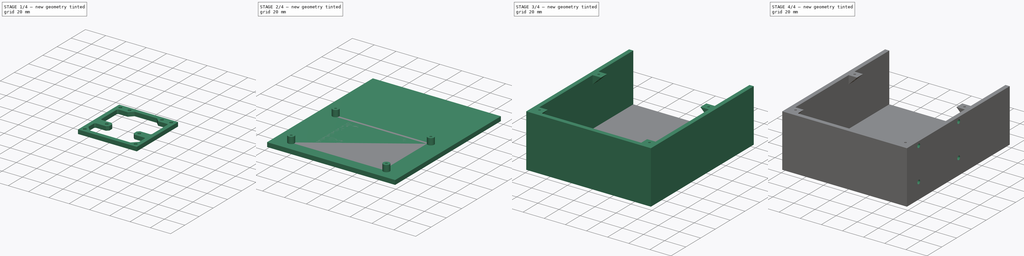
[diagram: build sequence overview — one tinted view per stage of 4, left to right]
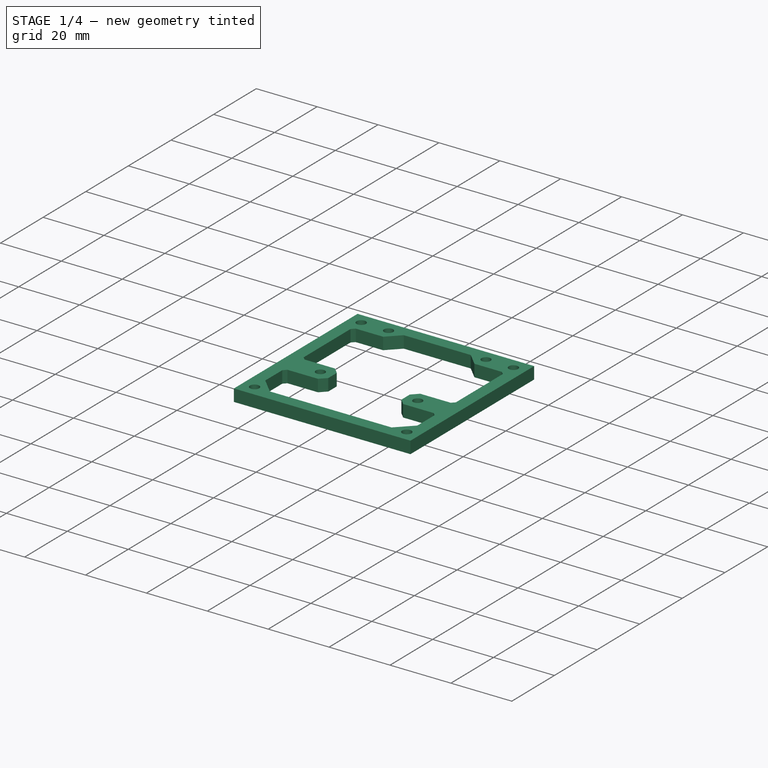
[diagram: stage 1 of 4 — iso view after this stage's code; geometry added in this stage tinted green]
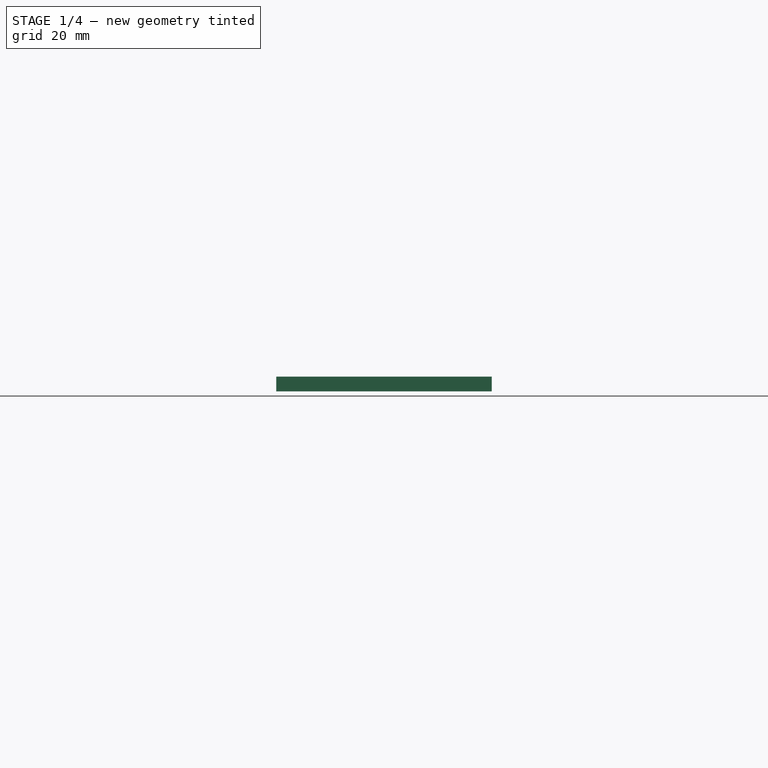
[diagram: stage 1 of 4 — front view after this stage's code; geometry added in this stage tinted green]
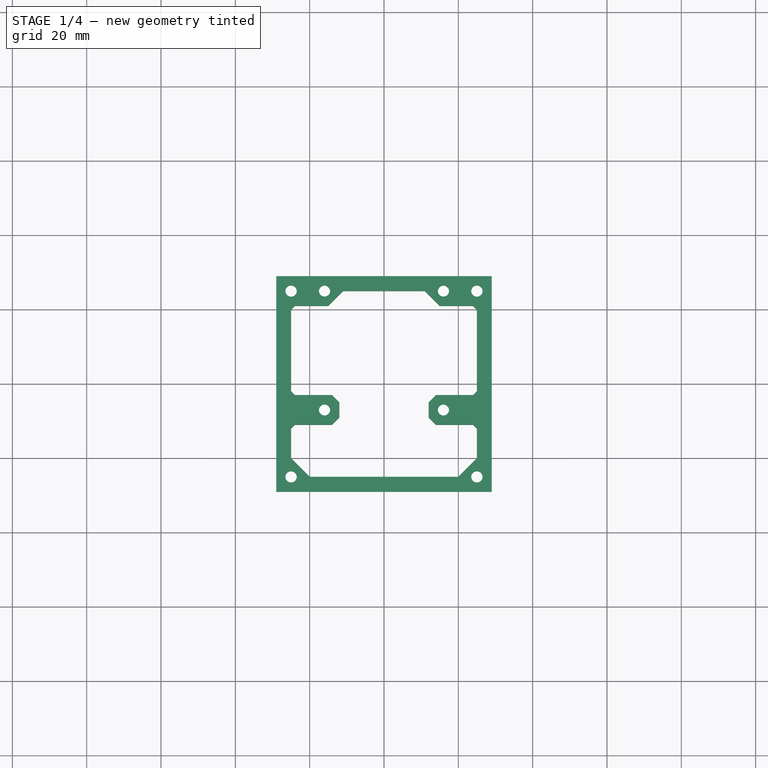
[diagram: stage 1 of 4 — top view after this stage's code; geometry added in this stage tinted green]
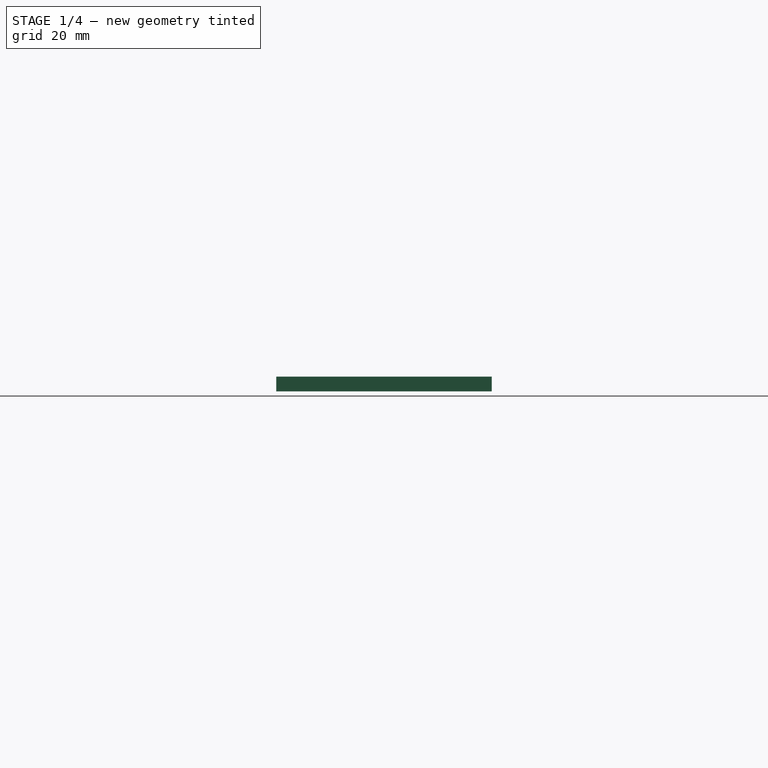
[diagram: stage 1 of 4 — right view after this stage's code; geometry added in this stage tinted green]
FCSTD DOCUMENT  (FreeCAD 0.18.4R)
Label: nvidiajetsonnano
License: All rights reserved
LicenseURL: http://en.wikipedia.org/wiki/All_rights_reserved
objects: Sketcher::SketchObject×10, PartDesign::Pad×6, PartDesign::Body×3, PartDesign::Pocket×3, PartDesign::Chamfer×2, Part::FeaturePython×1, PartDesign::LinearPattern×1, App::DocumentObjectGroup×1
note: 35 computed .brp shape members not serialized (recipe doc carries the construction recipe); baked Part::Feature solids carry a one-line shape summary decoded from their .brp

FEATURE [PartDesign::Body] Body001
  Group = -> [Sketch002,Sketch003,Pad001,Pad002,Sketch004,Pocket,Sketch005,Pad003,Sketch006,Pad004,LinearPattern,Sketch007,Pocket001,Sketch008,Pocket002]
  Origin = -> Origin001
  Tip = -> Pocket002
FEATURE [Sketcher::SketchObject] Sketch009
  MapMode = 5
  Support = -> [XY_Plane002]
  sketch-geometry (38):
    g0: LineSegment [constr] StartX=-16 StartY=25 StartZ=0 EndX=16 EndY=25 EndZ=0
    g1: LineSegment [constr] StartX=16 StartY=25 StartZ=0 EndX=16 EndY=-7 EndZ=0
    g2: LineSegment [constr] StartX=16 StartY=-7 StartZ=0 EndX=-16 EndY=-7 EndZ=0
    g3: LineSegment [constr] StartX=-16 StartY=-7 StartZ=0 EndX=-16 EndY=25 EndZ=0
    g4: LineSegment [constr] StartX=-25 StartY=25 StartZ=0 EndX=25 EndY=25 EndZ=0
    g5: LineSegment [constr] StartX=25 StartY=25 StartZ=0 EndX=25 EndY=-25 EndZ=0
    g6: LineSegment [constr] StartX=25 StartY=-25 StartZ=0 EndX=-25 EndY=-25 EndZ=0
    g7: LineSegment [constr] StartX=-25 StartY=-25 StartZ=0 EndX=-25 EndY=25 EndZ=0
    g8: Circle CenterX=-25 CenterY=25 CenterZ=0 NormalX=0 NormalY=0 NormalZ=1 AngleXU=0 Radius=1.525
    g9: Circle CenterX=25 CenterY=25 CenterZ=0 NormalX=0 NormalY=0 NormalZ=1 AngleXU=0 Radius=1.525
    g10: Circle CenterX=25 CenterY=-25 CenterZ=0 NormalX=0 NormalY=0 NormalZ=1 AngleXU=0 Radius=1.525
    g11: Circle CenterX=-25 CenterY=-25 CenterZ=0 NormalX=0 NormalY=0 NormalZ=1 AngleXU=0 Radius=1.525
    g12: Circle CenterX=-16 CenterY=25 CenterZ=0 NormalX=0 NormalY=0 NormalZ=1 AngleXU=0 Radius=1.5
    g13: Circle CenterX=16 CenterY=25 CenterZ=0 NormalX=0 NormalY=0 NormalZ=1 AngleXU=0 Radius=1.5
    g14: Circle CenterX=-16 CenterY=-7 CenterZ=0 NormalX=0 NormalY=0 NormalZ=1 AngleXU=0 Radius=1.5
    g15: Circle CenterX=16 CenterY=-7 CenterZ=0 NormalX=0 NormalY=0 NormalZ=1 AngleXU=0 Radius=1.5
    g16: LineSegment StartX=-29 StartY=29 StartZ=0 EndX=29 EndY=29 EndZ=0
    g17: LineSegment StartX=29 StartY=29 StartZ=0 EndX=29 EndY=-29 EndZ=0
    g18: LineSegment StartX=29 StartY=-29 StartZ=0 EndX=-29 EndY=-29 EndZ=0
    g19: LineSegment StartX=-29 StartY=-29 StartZ=0 EndX=-29 EndY=29 EndZ=0
    g20: LineSegment StartX=-25 StartY=-3 StartZ=0 EndX=-12 EndY=-3 EndZ=0
    g21: LineSegment StartX=-12 StartY=-3 StartZ=0 EndX=-12 EndY=-11 EndZ=0
    g22: LineSegment StartX=-12 StartY=-11 StartZ=0 EndX=-25 EndY=-11 EndZ=0
    g23: LineSegment StartX=25 StartY=-11 StartZ=0 EndX=12 EndY=-11 EndZ=0
    g24: LineSegment StartX=12 StartY=-11 StartZ=0 EndX=12 EndY=-3 EndZ=0
    g25: LineSegment StartX=12 StartY=-3 StartZ=0 EndX=25 EndY=-3 EndZ=0
    g26: LineSegment StartX=-25 StartY=-3 StartZ=0 EndX=-25 EndY=21 EndZ=0
    g27: LineSegment StartX=-25 StartY=21 StartZ=0 EndX=-15 EndY=21 EndZ=0
    g28: LineSegment StartX=-15 StartY=21 StartZ=0 EndX=-11 EndY=25 EndZ=0
    g29: LineSegment StartX=-11 StartY=25 StartZ=0 EndX=11 EndY=25 EndZ=0
    g30: LineSegment StartX=11 StartY=25 StartZ=0 EndX=15 EndY=21 EndZ=0
    g31: LineSegment StartX=15 StartY=21 StartZ=0 EndX=25 EndY=21 EndZ=0
    g32: LineSegment StartX=25 StartY=21 StartZ=0 EndX=25 EndY=-3 EndZ=0
    g33: LineSegment StartX=-25 StartY=-11 StartZ=0 EndX=-25 EndY=-20 EndZ=0
    g34: LineSegment StartX=-25 StartY=-20 StartZ=0 EndX=-20 EndY=-25 EndZ=0
    g35: LineSegment StartX=-20 StartY=-25 StartZ=0 EndX=20 EndY=-25 EndZ=0
    g36: LineSegment StartX=20 StartY=-25 StartZ=0 EndX=25 EndY=-20 EndZ=0
    g37: LineSegment StartX=25 StartY=-20 StartZ=0 EndX=25 EndY=-11 EndZ=0
  constraints (96):
    c: Coincident(g0,g1)
    c: Coincident(g1,g2)
    c: Coincident(g2,g3)
    c: Coincident(g3,g0)
    c: Horizontal(g2)
    c: Vertical(g1)
    c: DistanceX(g0,g0) = 32
    c: Coincident(g4,g5)
    c: Coincident(g5,g6)
    c: Coincident(g6,g7)
    c: Coincident(g7,g4)
    c: Horizontal(g6)
    c: Vertical(g5)
    c: DistanceX(g6,g6) = 50
    c: Equal(g6,g5)
    c: Equal(g3,g0)
    c: Symmetric(g0,g0,g-2)
    c: Symmetric(g6,g4,g-1)
    c: Symmetric(g4,g4,g-2)
    c: PointOnObject(g0,g4)
    c: Vertical(g3)
    c: Coincident(g8,g4)
    c: Coincident(g9,g4)
    c: Coincident(g10,g5)
    c: Coincident(g11,g6)
    c: Diameter(g8) = 3.05
    c: Equal(g8,g9)
    c: Equal(g8,g10)
    c: Equal(g8,g11)
    c: Coincident(g12,g0)
    c: Coincident(g13,g0)
    c: Coincident(g14,g2)
    c: Coincident(g15,g1)
    c: Diameter(g14) = 3
    c: Equal(g14,g15)
    c: Equal(g14,g13)
    c: Equal(g14,g12)
    c: Coincident(g16,g17)
    c: Coincident(g17,g18)
    c: Coincident(g18,g19)
    c: Coincident(g19,g16)
    c: Symmetric(g17,g18,g-2)
    c: Symmetric(g17,g16,g-1)
    c: Vertical(g19)
    c: Horizontal(g16)
    c: Equal(g16,g19)
    c: Horizontal(g20)
    c: Coincident(g20,g21)
    c: Vertical(g21)
    c: Coincident(g21,g22)
    c: Horizontal(g22)
    c: Horizontal(g23)
    c: Coincident(g23,g24)
    c: Coincident(g24,g25)
    c: Horizontal(g25)
    c: Equal(g21,g24)
    c: Equal(g23,g22)
    c: DistanceY(g24,g24) = 8
    c: Symmetric(g20,g24,g-2)
    c: Vertical(g23,g25)
    c: Vertical(g20,g22)
    c: Coincident(g20,g26)
    c: Vertical(g26)
    c: Coincident(g26,g27)
    c: Horizontal(g27)
    c: Coincident(g27,g28)
    c: PointOnObject(g28,g0)
    c: Coincident(g28,g29)
    c: Coincident(g29,g30)
    c: Coincident(g30,g31)
    c: Horizontal(g31)
    c: Coincident(g31,g32)
    c: Coincident(g32,g25)
    c: Vertical(g32)
    c: Angle(g28,g29) = 2.35619
    c: Symmetric(g29,g28,g-2)
    c: Symmetric(g30,g27,g-2)
    c: DistanceX(g29,g29) = 22
    c: DistanceY(g31) = 21
    c: DistanceX(g-1,g25) = 25
    c: Symmetric(g24,g23,g2)
    c: Coincident(g22,g33)
    c: PointOnObject(g33,g7)
    c: Coincident(g33,g34)
    c: PointOnObject(g34,g6)
    c: Coincident(g34,g35)
    c: Coincident(g35,g36)
    c: PointOnObject(g36,g5)
    c: Coincident(g36,g37)
    c: Coincident(g37,g23)
    c: Symmetric(g35,g34,g-2)
    c: Horizontal(g36,g33)
    c: Angle(g6,g34) = 2.35619
    c: DistanceX(g11,g34) = 5
    c: DistanceX(g20,g20) = 13
    c: DistanceX(g18,g11) = 4
FEATURE [PartDesign::Pad] Pad005
  Length = 4
  Length2 = 100
  Profile = -> Sketch009
  Type = 0
FEATURE [PartDesign::Chamfer] Chamfer
  Base = -> Pad005 [Edge17,Edge20,Edge41,Edge44]
  BaseFeature = -> Pad005
  Size = 2
FEATURE [PartDesign::Chamfer] Chamfer001
  Base = -> Chamfer [Edge3,Edge40,Edge82,Edge84,Edge77,Edge87]
  BaseFeature = -> Chamfer
  Size = 1
FEATURE [PartDesign::Body] Body002  label="fan4to6shifted"
  Group = -> [Sketch009,Pad005,Chamfer,Chamfer001]
  Origin = -> Origin002
  Tip = -> Chamfer001
FEATURE [App::DocumentObjectGroup] Group  label="fan4to6"
  Group = -> [Array,Body,Body002]
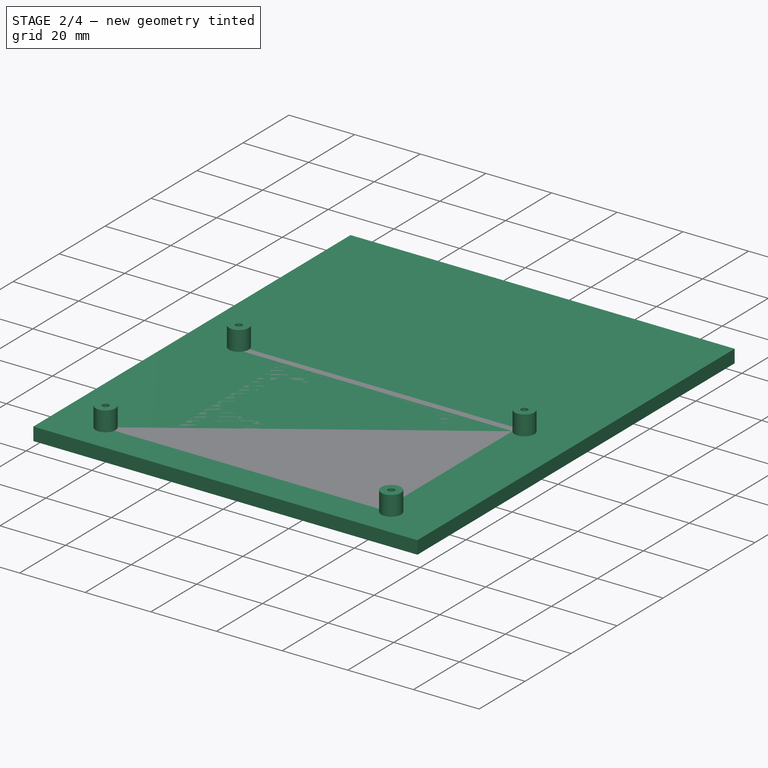
[diagram: stage 2 of 4 — iso view after this stage's code; geometry added in this stage tinted green]
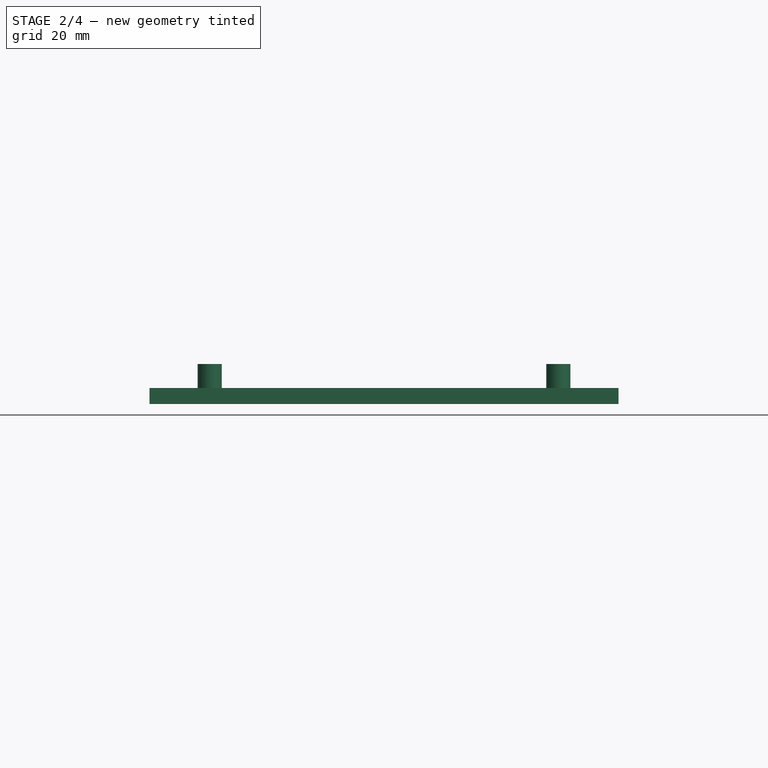
[diagram: stage 2 of 4 — front view after this stage's code; geometry added in this stage tinted green]
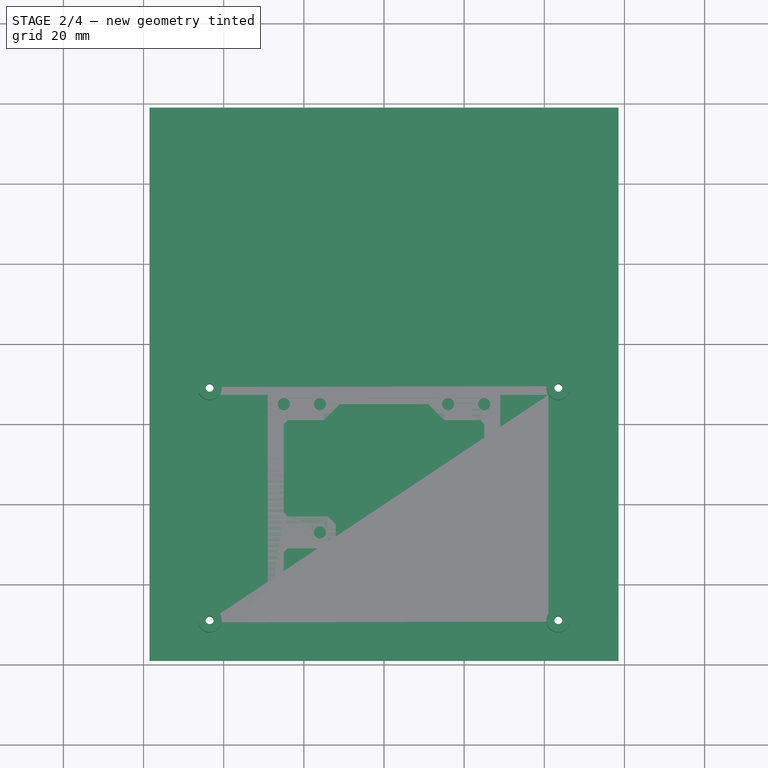
[diagram: stage 2 of 4 — top view after this stage's code; geometry added in this stage tinted green]
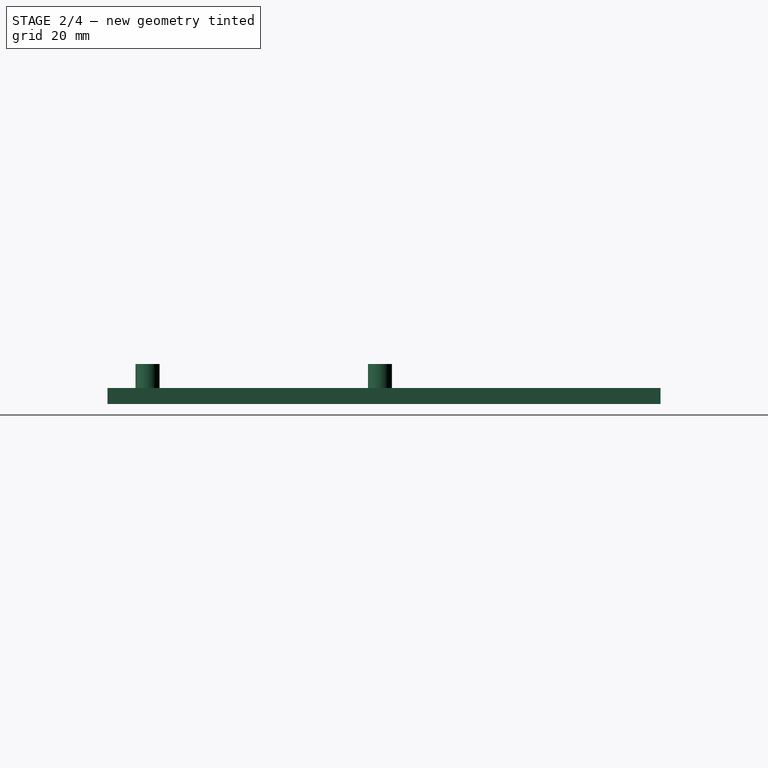
[diagram: stage 2 of 4 — right view after this stage's code; geometry added in this stage tinted green]
FEATURE [Sketcher::SketchObject] Sketch002
  MapMode = 5
  Support = -> [XY_Plane001]
  sketch-geometry (12):
    g0: LineSegment [constr] StartX=-43.5 StartY=29 StartZ=0 EndX=43.5 EndY=29 EndZ=0
    g1: LineSegment [constr] StartX=43.5 StartY=29 StartZ=0 EndX=43.5 EndY=-29 EndZ=0
    g2: LineSegment [constr] StartX=43.5 StartY=-29 StartZ=0 EndX=-43.5 EndY=-29 EndZ=0
    g3: LineSegment [constr] StartX=-43.5 StartY=-29 StartZ=0 EndX=-43.5 EndY=29 EndZ=0
    g4: Circle [constr] CenterX=43.5 CenterY=-29 CenterZ=0 NormalX=0 NormalY=0 NormalZ=1 AngleXU=0 Radius=1.5
    g5: Circle [constr] CenterX=43.5 CenterY=29 CenterZ=0 NormalX=0 NormalY=0 NormalZ=1 AngleXU=0 Radius=1.5
    g6: Circle [constr] CenterX=-43.5 CenterY=29 CenterZ=0 NormalX=0 NormalY=0 NormalZ=1 AngleXU=0 Radius=1.5
    g7: Circle [constr] CenterX=-43.5 CenterY=-29 CenterZ=0 NormalX=0 NormalY=0 NormalZ=1 AngleXU=0 Radius=1.5
    g8: LineSegment StartX=-58.5 StartY=-39 StartZ=0 EndX=58.5 EndY=-39 EndZ=0
    g9: LineSegment StartX=58.5 StartY=-39 StartZ=0 EndX=58.5 EndY=99 EndZ=0
    g10: LineSegment StartX=58.5 StartY=99 StartZ=0 EndX=-58.5 EndY=99 EndZ=0
    g11: LineSegment StartX=-58.5 StartY=99 StartZ=0 EndX=-58.5 EndY=-39 EndZ=0
  constraints (29):
    c: Coincident(g0,g1)
    c: Coincident(g1,g2)
    c: Coincident(g2,g3)
    c: Coincident(g3,g0)
    c: Horizontal(g2)
    c: Vertical(g3)
    c: Symmetric(g1,g0,g-1)
    c: Symmetric(g0,g0,g-2)
    c: DistanceY(g1,g1) = 58
    c: DistanceX(g0,g0) = 87
    c: Coincident(g4,g1)
    c: Coincident(g5,g0)
    c: Coincident(g6,g0)
    c: Coincident(g7,g2)
    c: Diameter(g4) = 3
    c: Equal(g4,g5)
    c: Equal(g4,g6)
    c: Equal(g4,g7)
    c: Coincident(g8,g9)
    c: Coincident(g9,g10)
    c: Coincident(g10,g11)
    c: Coincident(g11,g8)
    c: Horizontal(g10)
    c: Vertical(g9)
    c: Vertical(g11)
    c: Symmetric(g8,g8,g-2)
    c: DistanceY(g8,g7) = 10
    c: DistanceY(g6,g10) = 70
    c: DistanceX(g8,g7) = 15
FEATURE [Sketcher::SketchObject] Sketch003
  MapMode = 5
  Support = -> [XY_Plane001]
  sketch-geometry (8):
    g0: LineSegment [constr] StartX=-43.5 StartY=29 StartZ=0 EndX=43.5 EndY=29 EndZ=0
    g1: LineSegment [constr] StartX=43.5 StartY=29 StartZ=0 EndX=43.5 EndY=-29 EndZ=0
    g2: LineSegment [constr] StartX=43.5 StartY=-29 StartZ=0 EndX=-43.5 EndY=-29 EndZ=0
    g3: LineSegment [constr] StartX=-43.5 StartY=-29 StartZ=0 EndX=-43.5 EndY=29 EndZ=0
    g4: Circle CenterX=43.5 CenterY=-29 CenterZ=0 NormalX=0 NormalY=0 NormalZ=1 AngleXU=0 Radius=3
    g5: Circle CenterX=43.5 CenterY=29 CenterZ=0 NormalX=0 NormalY=0 NormalZ=1 AngleXU=0 Radius=3
    g6: Circle CenterX=-43.5 CenterY=29 CenterZ=0 NormalX=0 NormalY=0 NormalZ=1 AngleXU=0 Radius=3
    g7: Circle CenterX=-43.5 CenterY=-29 CenterZ=0 NormalX=0 NormalY=0 NormalZ=1 AngleXU=0 Radius=3
  constraints (18):
    c: Coincident(g0,g1)
    c: Coincident(g1,g2)
    c: Coincident(g2,g3)
    c: Coincident(g3,g0)
    c: Horizontal(g2)
    c: Vertical(g3)
    c: Symmetric(g1,g0,g-1)
    c: Symmetric(g0,g0,g-2)
    c: DistanceY(g1,g1) = 58
    c: DistanceX(g0,g0) = 87
    c: Coincident(g4,g1)
    c: Coincident(g5,g0)
    c: Coincident(g6,g0)
    c: Coincident(g7,g2)
    c: Diameter(g4) = 6
    c: Equal(g4,g5)
    c: Equal(g4,g6)
    c: Equal(g4,g7)
FEATURE [PartDesign::Pad] Pad001
  Length = 4
  Length2 = 100
  Profile = -> Sketch002
  Type = 0
FEATURE [PartDesign::Pad] Pad002  label="sekruppad"
  BaseFeature = -> Pad001
  Length = 10
  Length2 = 100
  Profile = -> Sketch003
  Type = 0
FEATURE [Sketcher::SketchObject] Sketch004
  MapMode = 5
  Support = -> [XY_Plane001]
  sketch-geometry (8):
    g0: LineSegment [constr] StartX=-43.5 StartY=29 StartZ=0 EndX=43.5 EndY=29 EndZ=0
    g1: LineSegment [constr] StartX=43.5 StartY=29 StartZ=0 EndX=43.5 EndY=-29 EndZ=0
    g2: LineSegment [constr] StartX=43.5 StartY=-29 StartZ=0 EndX=-43.5 EndY=-29 EndZ=0
    g3: LineSegment [constr] StartX=-43.5 StartY=-29 StartZ=0 EndX=-43.5 EndY=29 EndZ=0
    g4: Circle CenterX=43.5 CenterY=-29 CenterZ=0 NormalX=0 NormalY=0 NormalZ=1 AngleXU=0 Radius=1
    g5: Circle CenterX=43.5 CenterY=29 CenterZ=0 NormalX=0 NormalY=0 NormalZ=1 AngleXU=0 Radius=1
    g6: Circle CenterX=-43.5 CenterY=29 CenterZ=0 NormalX=0 NormalY=0 NormalZ=1 AngleXU=0 Radius=1
    g7: Circle CenterX=-43.5 CenterY=-29 CenterZ=0 NormalX=0 NormalY=0 NormalZ=1 AngleXU=0 Radius=1
  constraints (18):
    c: Coincident(g0,g1)
    c: Coincident(g1,g2)
    c: Coincident(g2,g3)
    c: Coincident(g3,g0)
    c: Horizontal(g2)
    c: Vertical(g3)
    c: Symmetric(g1,g0,g-1)
    c: Symmetric(g0,g0,g-2)
    c: DistanceY(g1,g1) = 58
    c: DistanceX(g0,g0) = 87
    c: Coincident(g4,g1)
    c: Coincident(g5,g0)
    c: Coincident(g6,g0)
    c: Coincident(g7,g2)
    c: Diameter(g4) = 2
    c: Equal(g4,g5)
    c: Equal(g4,g6)
    c: Equal(g4,g7)
FEATURE [PartDesign::Pocket] Pocket  label="sekruppock"
  BaseFeature = -> Pad002
  Length = 5
  Length2 = 100
  Midplane = true
  Profile = -> Sketch004
  Type = 1
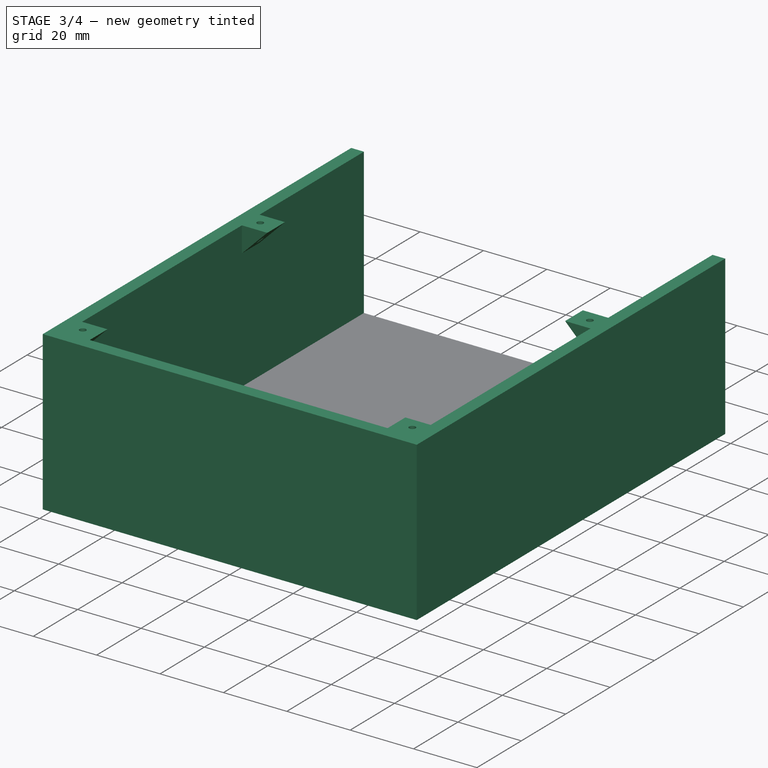
[diagram: stage 3 of 4 — iso view after this stage's code; geometry added in this stage tinted green]
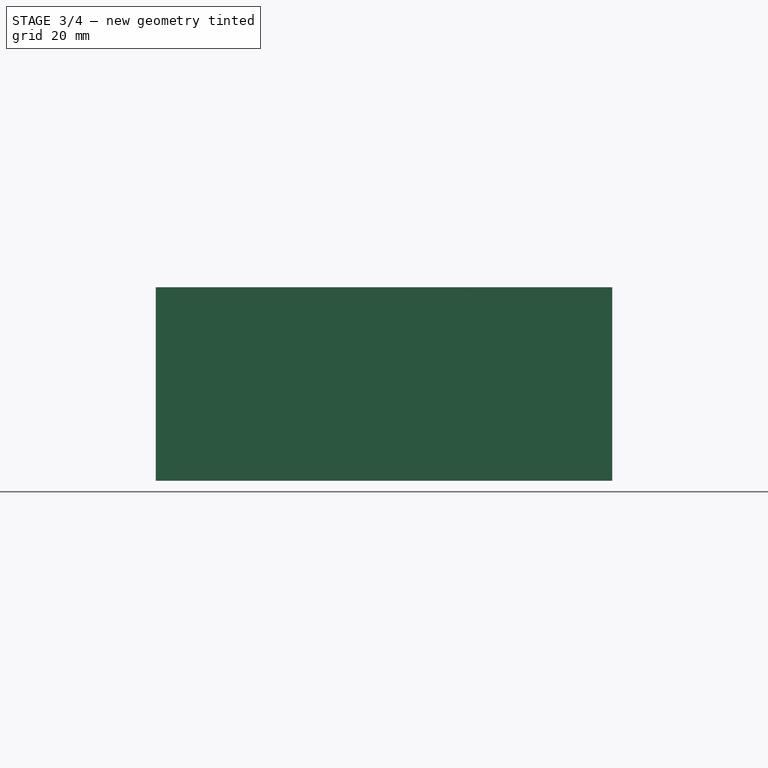
[diagram: stage 3 of 4 — front view after this stage's code; geometry added in this stage tinted green]
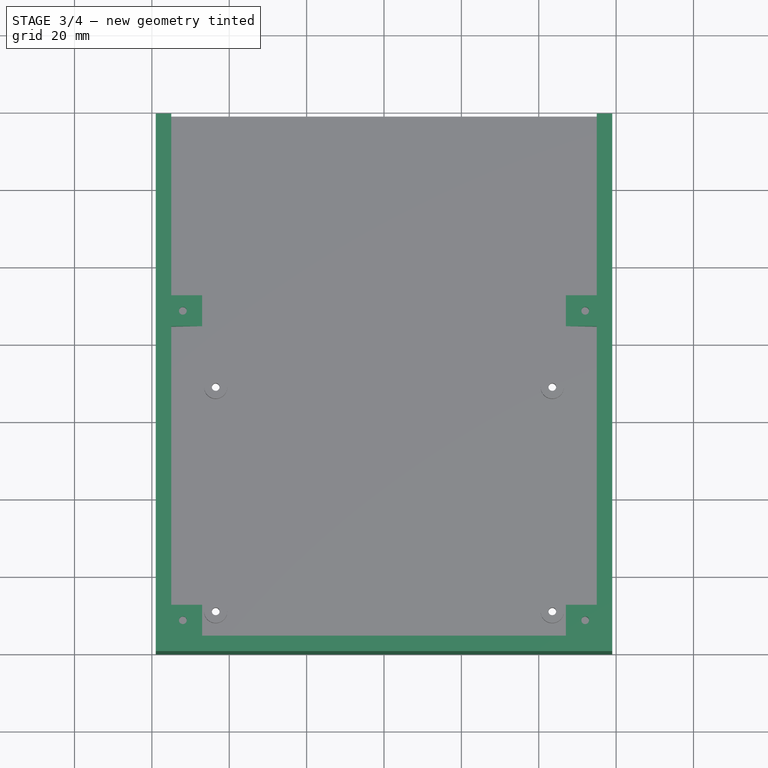
[diagram: stage 3 of 4 — top view after this stage's code; geometry added in this stage tinted green]
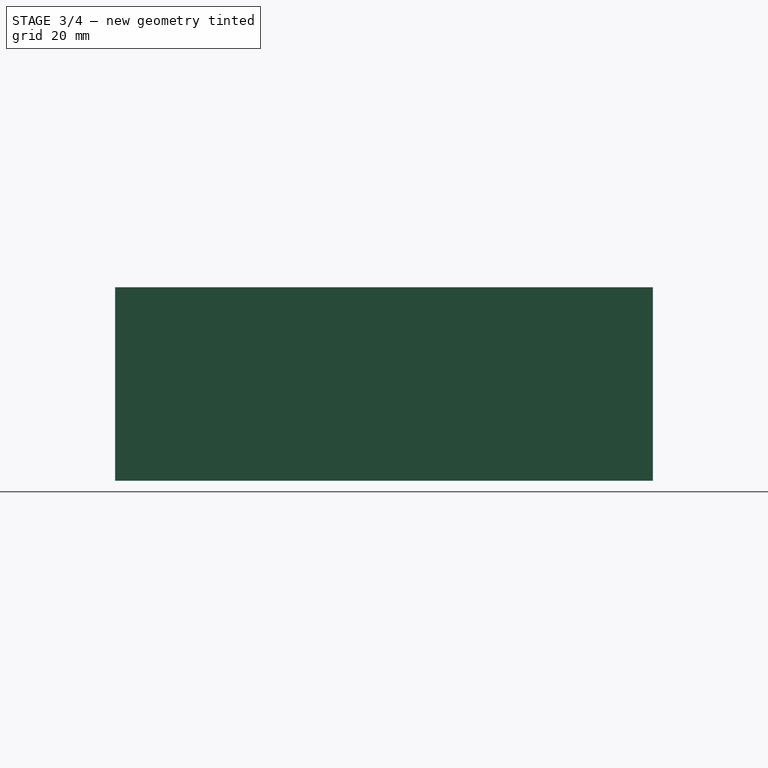
[diagram: stage 3 of 4 — right view after this stage's code; geometry added in this stage tinted green]
FEATURE [Sketcher::SketchObject] Sketch005
  MapMode = 5
  Support = -> [XY_Plane001]
  sketch-geometry (8):
    g0: LineSegment StartX=-59 StartY=-40 StartZ=0 EndX=59 EndY=-40 EndZ=0
    g1: LineSegment StartX=59 StartY=-40 StartZ=0 EndX=59 EndY=99 EndZ=0
    g2: LineSegment StartX=-59 StartY=99 StartZ=0 EndX=-59 EndY=-40 EndZ=0
    g3: LineSegment StartX=-59 StartY=99 StartZ=0 EndX=-55 EndY=99 EndZ=0
    g4: LineSegment StartX=-55 StartY=99 StartZ=0 EndX=-55 EndY=-36 EndZ=0
    g5: LineSegment StartX=-55 StartY=-36 StartZ=0 EndX=55 EndY=-36 EndZ=0
    g6: LineSegment StartX=55 StartY=-36 StartZ=0 EndX=55 EndY=99 EndZ=0
    g7: LineSegment StartX=55 StartY=99 StartZ=0 EndX=59 EndY=99 EndZ=0
  constraints (23):
    c: Coincident(g0,g1)
    c: Coincident(g2,g0)
    c: Horizontal(g0)
    c: Vertical(g1)
    c: Vertical(g2)
    c: Symmetric(g1,g2,g-2)
    c: DistanceX(g0,g0) = 118
    c: DistanceY(g0,g-1) = 40
    c: DistanceY(g1) = 99
    c: Coincident(g2,g3)
    c: Horizontal(g3)
    c: Coincident(g3,g4)
    c: Vertical(g4)
    c: Coincident(g4,g5)
    c: Horizontal(g5)
    c: Coincident(g5,g6)
    c: Vertical(g6)
    c: Coincident(g6,g7)
    c: Coincident(g7,g1)
    c: Horizontal(g7)
    c: Equal(g3,g7)
    c: DistanceX(g3,g3) = 4
    c: DistanceY(g0,g4) = 4
FEATURE [PartDesign::Pad] Pad003  label="wall"
  BaseFeature = -> Pocket
  Length = 50
  Length2 = 100
  Profile = -> Sketch005
  Type = 0
FEATURE [Sketcher::SketchObject] Sketch006
  AttachmentOffset = pos=(0,0,36) rot=(0,1,0;3.14159rad)
  MapMode = 5
  Placement = pos=(0,-36,-8e-15) rot=(0,0.707107,0.707107;3.14159rad)
  Support = -> [XZ_Plane001]
  sketch-geometry (6):
    g0: LineSegment StartX=-55 StartY=50 StartZ=0 EndX=-55 EndY=42 EndZ=0
    g1: LineSegment StartX=-55 StartY=42 StartZ=0 EndX=-47 EndY=50 EndZ=0
    g2: LineSegment StartX=-47 StartY=50 StartZ=0 EndX=-55 EndY=50 EndZ=0
    g3: LineSegment StartX=47 StartY=50 StartZ=0 EndX=55 EndY=42 EndZ=0
    g4: LineSegment StartX=55 StartY=42 StartZ=0 EndX=55 EndY=50 EndZ=0
    g5: LineSegment StartX=55 StartY=50 StartZ=0 EndX=47 EndY=50 EndZ=0
  constraints (17):
    c: Vertical(g0)
    c: Coincident(g0,g1)
    c: Coincident(g1,g2)
    c: Coincident(g2,g0)
    c: Horizontal(g2)
    c: Equal(g2,g0)
    c: DistanceY(g0) = 42
    c: DistanceY(g0) = 50
    c: DistanceX(g0) = -55
    c: Coincident(g3,g4)
    c: Vertical(g4)
    c: Coincident(g4,g5)
    c: Coincident(g5,g3)
    c: Horizontal(g5)
    c: Equal(g5,g4)
    c: Symmetric(g3,g1,g-2)
    c: Equal(g5,g2)
FEATURE [PartDesign::Pad] Pad004  label="rooflock"
  BaseFeature = -> Pad003
  Length = 8
  Length2 = 100
  Profile = -> Sketch006
  Type = 0
FEATURE [PartDesign::LinearPattern] LinearPattern  label="rooflockpat"
  BaseFeature = -> Pad004
  Direction = -> Y_Axis001
  Length = 80
  Occurrences = 2
  Originals = -> [Pad004]
FEATURE [Sketcher::SketchObject] Sketch007
  AttachmentOffset = pos=(0,0,50) rot=(0,0,1;0rad)
  MapMode = 5
  Placement = pos=(0,0,50) rot=(0,0,1;0rad)
  Support = -> [XY_Plane001]
  sketch-geometry (8):
    g0: LineSegment [constr] StartX=52 StartY=-32 StartZ=0 EndX=-52 EndY=-32 EndZ=0
    g1: LineSegment [constr] StartX=-52 StartY=-32 StartZ=0 EndX=-52 EndY=48 EndZ=0
    g2: LineSegment [constr] StartX=-52 StartY=48 StartZ=0 EndX=52 EndY=48 EndZ=0
    g3: LineSegment [constr] StartX=52 StartY=48 StartZ=0 EndX=52 EndY=-32 EndZ=0
    g4: Circle CenterX=52 CenterY=-32 CenterZ=0 NormalX=0 NormalY=0 NormalZ=1 AngleXU=0 Radius=1
    g5: Circle CenterX=-52 CenterY=-32 CenterZ=0 NormalX=0 NormalY=0 NormalZ=1 AngleXU=0 Radius=1
    g6: Circle CenterX=-52 CenterY=48 CenterZ=0 NormalX=0 NormalY=0 NormalZ=1 AngleXU=0 Radius=1
    g7: Circle CenterX=52 CenterY=48 CenterZ=0 NormalX=0 NormalY=0 NormalZ=1 AngleXU=0 Radius=1
  constraints (19):
    c: Coincident(g0,g1)
    c: Coincident(g1,g2)
    c: Coincident(g2,g3)
    c: Coincident(g3,g0)
    c: Horizontal(g0)
    c: Vertical(g1)
    c: Vertical(g3)
    c: DistanceY(g2) = 48
    c: DistanceY(g1,g1) = 80
    c: DistanceX(g0,g0) = 104
    c: Coincident(g4,g0)
    c: Coincident(g5,g0)
    c: Coincident(g6,g1)
    c: Coincident(g7,g2)
    c: Diameter(g4) = 2
    c: Equal(g4,g5)
    c: Equal(g4,g6)
    c: Equal(g4,g7)
    c: Symmetric(g7,g6,g-2)
FEATURE [PartDesign::Pocket] Pocket001
  BaseFeature = -> LinearPattern
  Length = 10
  Length2 = 100
  Profile = -> Sketch007
  Type = 0
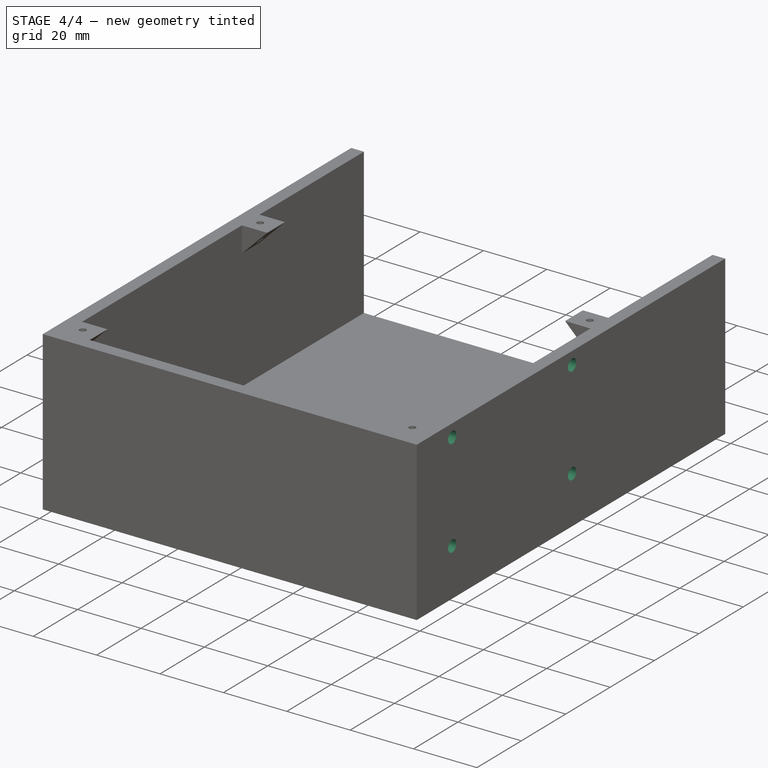
[diagram: stage 4 of 4 — iso view after this stage's code; geometry added in this stage tinted green]
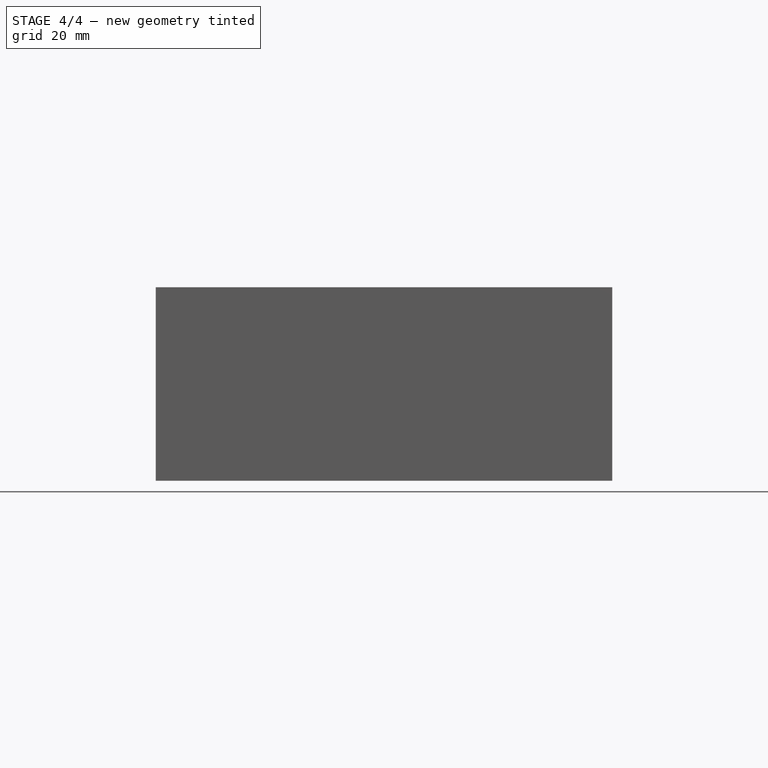
[diagram: stage 4 of 4 — front view after this stage's code; geometry added in this stage tinted green]
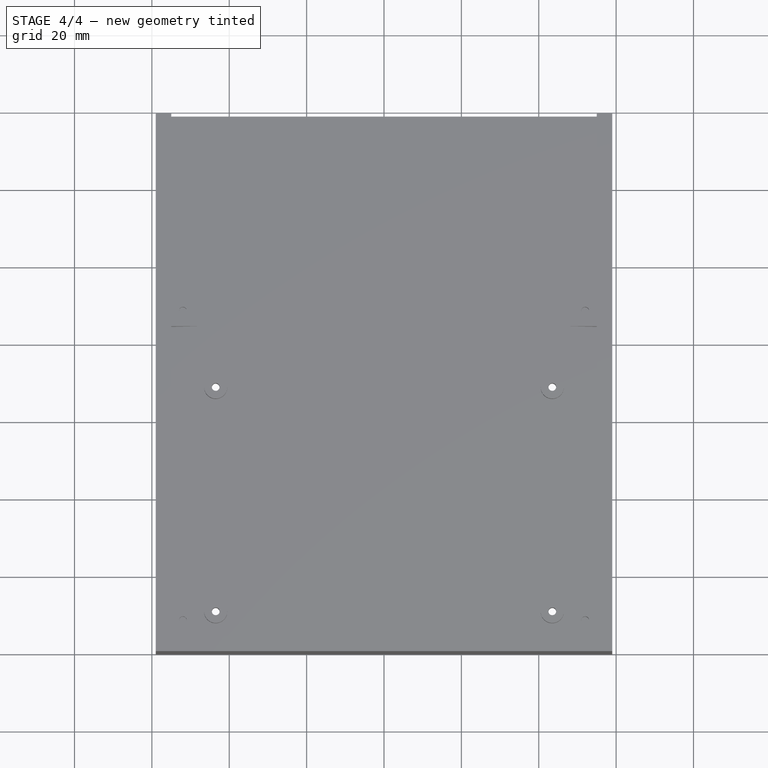
[diagram: stage 4 of 4 — top view after this stage's code; geometry added in this stage tinted green]
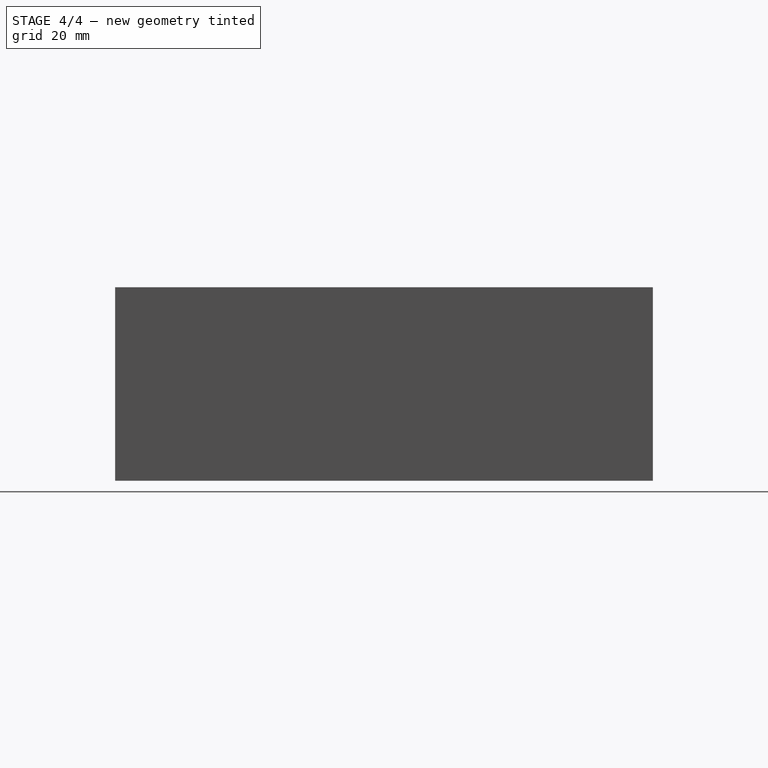
[diagram: stage 4 of 4 — right view after this stage's code; geometry added in this stage tinted green]
FEATURE [Sketcher::SketchObject] Sketch
  MapMode = 5
  Support = -> [XY_Plane]
  sketch-geometry (23):
    g0: LineSegment [constr] StartX=-25 StartY=25 StartZ=0 EndX=25 EndY=25 EndZ=0
    g1: LineSegment [constr] StartX=25 StartY=25 StartZ=0 EndX=25 EndY=-25 EndZ=0
    g2: LineSegment [constr] StartX=25 StartY=-25 StartZ=0 EndX=-25 EndY=-25 EndZ=0
    g3: LineSegment [constr] StartX=-25 StartY=-25 StartZ=0 EndX=-25 EndY=25 EndZ=0
    g4: LineSegment StartX=-30 StartY=30 StartZ=0 EndX=30 EndY=30 EndZ=0
    g5: LineSegment StartX=30 StartY=30 StartZ=0 EndX=30 EndY=-30 EndZ=0
    g6: LineSegment StartX=30 StartY=-30 StartZ=0 EndX=-30 EndY=-30 EndZ=0
    g7: LineSegment StartX=-30 StartY=-30 StartZ=0 EndX=-30 EndY=30 EndZ=0
    g8: Circle CenterX=-25 CenterY=25 CenterZ=0 NormalX=0 NormalY=0 NormalZ=1 AngleXU=0 Radius=1.8
    g9: Circle CenterX=-25 CenterY=-25 CenterZ=0 NormalX=0 NormalY=0 NormalZ=1 AngleXU=0 Radius=1.8
    g10: Circle CenterX=25 CenterY=-25 CenterZ=0 NormalX=0 NormalY=0 NormalZ=1 AngleXU=0 Radius=1.8
    g11: Circle CenterX=25 CenterY=25 CenterZ=0 NormalX=0 NormalY=0 NormalZ=1 AngleXU=0 Radius=1.8
    g12: LineSegment [constr] StartX=-16.25 StartY=16.25 StartZ=0 EndX=16.25 EndY=16.25 EndZ=0
    g13: LineSegment [constr] StartX=16.25 StartY=16.25 StartZ=0 EndX=16.25 EndY=-16.25 EndZ=0
    g14: LineSegment [constr] StartX=16.25 StartY=-16.25 StartZ=0 EndX=-16.25 EndY=-16.25 EndZ=0
    g15: LineSegment [constr] StartX=-16.25 StartY=-16.25 StartZ=0 EndX=-16.25 EndY=16.25 EndZ=0
    g16: Circle CenterX=-16.25 CenterY=16.25 CenterZ=0 NormalX=0 NormalY=0 NormalZ=1 AngleXU=0 Radius=1.5
    g17: Circle CenterX=16.25 CenterY=16.25 CenterZ=0 NormalX=0 NormalY=0 NormalZ=1 AngleXU=0 Radius=1.5
    g18: Circle CenterX=16.25 CenterY=-16.25 CenterZ=0 NormalX=0 NormalY=0 NormalZ=1 AngleXU=0 Radius=1.5
    g19: Circle CenterX=-16.25 CenterY=-16.25 CenterZ=0 NormalX=0 NormalY=0 NormalZ=1 AngleXU=0 Radius=1.5
    g20: LineSegment StartX=-25 StartY=19 StartZ=0 EndX=-16.25 EndY=10.7085 EndZ=0
    g21: LineSegment StartX=-16.25 StartY=10.7085 StartZ=0 EndX=-11 EndY=16.25 EndZ=0
    g22: LineSegment StartX=-11 StartY=16.25 StartZ=0 EndX=-16.6187 EndY=25 EndZ=0
  constraints (52):
    c: Coincident(g0,g1)
    c: Coincident(g1,g2)
    c: Coincident(g2,g3)
    c: Coincident(g3,g0)
    c: Horizontal(g0)
    c: Vertical(g3)
    c: Symmetric(g1,g2,g-2)
    c: Symmetric(g0,g1,g-1)
    c: Equal(g0,g3)
    c: DistanceY(g1,g1) = 50
    c: Coincident(g4,g5)
    c: Coincident(g5,g6)
    c: Coincident(g6,g7)
    c: Coincident(g7,g4)
    c: Horizontal(g6)
    c: Vertical(g7)
    c: Symmetric(g5,g4,g-1)
    c: Symmetric(g4,g4,g-2)
    c: Equal(g4,g7)
    c: DistanceX(g4,g4) = 60
    c: Coincident(g8,g0)
    c: Coincident(g9,g2)
    c: Coincident(g10,g1)
    c: Coincident(g11,g0)
    c: Coincident(g12,g13)
    c: Coincident(g13,g14)
    c: Coincident(g14,g15)
    c: Coincident(g15,g12)
    c: Horizontal(g14)
    c: Vertical(g15)
    c: Symmetric(g13,g12,g-1)
    c: Symmetric(g12,g12,g-2)
    c: Equal(g12,g15)
    c: DistanceX(g14,g14) = 32.5
    c: Coincident(g16,g12)
    c: Coincident(g17,g12)
    c: Coincident(g18,g13)
    c: Coincident(g19,g14)
    c: Diameter(g19) = 3
    c: Equal(g19,g18)
    c: Equal(g19,g17)
    c: Equal(g19,g16)
    c: Diameter(g8) = 3.6
    c: Equal(g8,g11)
    c: Equal(g8,g10)
    c: Equal(g8,g9)
    c: PointOnObject(g20,g3)
    c: PointOnObject(g20,g15)
    c: Coincident(g20,g21)
    c: PointOnObject(g21,g12)
    c: Coincident(g21,g22)
    c: PointOnObject(g22,g0)
FEATURE [Sketcher::SketchObject] Sketch001
  MapMode = 5
  Support = -> [XY_Plane]
  sketch-geometry (18):
    g0: LineSegment [constr] StartX=-16 StartY=0 StartZ=0 EndX=-16 EndY=16 EndZ=0
    g1: LineSegment [constr] StartX=-16 StartY=16 StartZ=0 EndX=0 EndY=16 EndZ=0
    g2: LineSegment StartX=0 StartY=30 StartZ=0 EndX=-24 EndY=30 EndZ=0
    g3: LineSegment StartX=-30 StartY=24 StartZ=0 EndX=-30 EndY=0 EndZ=0
    g4: LineSegment [constr] StartX=-25 StartY=0 StartZ=0 EndX=-25 EndY=25 EndZ=0
    g5: LineSegment [constr] StartX=-25 StartY=25 StartZ=0 EndX=0 EndY=25 EndZ=0
    g6: Circle CenterX=-16 CenterY=16 CenterZ=0 NormalX=0 NormalY=0 NormalZ=1 AngleXU=0 Radius=1.25
    g7: Circle CenterX=-25 CenterY=25 CenterZ=0 NormalX=0 NormalY=0 NormalZ=1 AngleXU=0 Radius=1.6
    g8: LineSegment StartX=-25 StartY=0 StartZ=0 EndX=-25 EndY=20 EndZ=0
    g9: LineSegment StartX=-23.9645 StartY=20.4289 StartZ=0 EndX=-16 EndY=12.4645 EndZ=0
    g10: LineSegment StartX=-16 StartY=12.4645 StartZ=0 EndX=-12.4645 EndY=16 EndZ=0
    g11: LineSegment StartX=-12.4645 StartY=16 StartZ=0 EndX=-20.4289 EndY=23.9645 EndZ=0
    g12: LineSegment StartX=-20 StartY=25 StartZ=0 EndX=0 EndY=25 EndZ=0
    g13: LineSegment StartX=0 StartY=25 StartZ=0 EndX=0 EndY=30 EndZ=0
    g14: LineSegment StartX=-30 StartY=0 StartZ=0 EndX=-25 EndY=0 EndZ=0
    g15: ArcOfCircle CenterX=-24.3934 CenterY=20 CenterZ=0 NormalX=0 NormalY=0 NormalZ=1 AngleXU=0 Radius=0.606602 StartAngle=0.785398 EndAngle=3.14159
    g16: ArcOfCircle CenterX=-20 CenterY=24.3934 CenterZ=0 NormalX=0 NormalY=0 NormalZ=1 AngleXU=0 Radius=0.606602 StartAngle=1.5708 EndAngle=3.92699
    g17: ArcOfCircle CenterX=-24 CenterY=24 CenterZ=0 NormalX=0 NormalY=0 NormalZ=1 AngleXU=0 Radius=6 StartAngle=1.5708 EndAngle=3.14159
  constraints (50):
    c: PointOnObject(g0,g-1)
    c: Vertical(g0)
    c: Coincident(g1,g0)
    c: PointOnObject(g1,g-2)
    c: Horizontal(g1)
    c: PointOnObject(g2,g-2)
    c: Horizontal(g2)
    c: PointOnObject(g3,g-1)
    c: PointOnObject(g4,g-1)
    c: Vertical(g4)
    c: Coincident(g5,g4)
    c: PointOnObject(g5,g-2)
    c: Horizontal(g5)
    c: Vertical(g3)
    c: Equal(g0,g1)
    c: DistanceX(g1,g1) = 16
    c: Equal(g5,g4)
    c: DistanceX(g5,g5) = 25
    c: Equal(g2,g3)
    c: Coincident(g6,g0)
    c: Diameter(g6) = 2.5
    c: Coincident(g7,g4)
    c: Diameter(g7) = 3.2
    c: Coincident(g4,g8)
    c: PointOnObject(g9,g0)
    c: Coincident(g9,g10)
    c: PointOnObject(g10,g1)
    c: Coincident(g10,g11)
    c: Coincident(g12,g5)
    c: Coincident(g12,g13)
    c: Coincident(g13,g2)
    c: Coincident(g3,g14)
    c: Coincident(g14,g8)
    c: Parallel(g9,g11)
    c: Perpendicular(g9,g10)
    c: Equal(g8,g12)
    c: Distance(g10) = 5
    c: Tangent(g8,g15) = 1.5708
    c: Tangent(g9,g15) = 1.5708
    c: Tangent(g11,g16) = 1.5708
    c: Tangent(g12,g16) = 1.5708
    c: PointOnObject(g12,g5)
    c: PointOnObject(g8,g4)
    c: Equal(g8,g12)
    c: Equal(g15,g16)
    c: DistanceX(g12,g12) = 20
    c: Tangent(g2,g17) = -1.5708
    c: Tangent(g3,g17) = -1.5708
    c: DistanceX(g14,g14) = 5
    c: DistanceY(g3,g3) = 24
FEATURE [PartDesign::Pad] Pad
  Length = 3
  Length2 = 100
  Profile = -> Sketch001
  Type = 0
FEATURE [PartDesign::Body] Body
  Group = -> [Sketch,Sketch001,Pad]
  Origin = -> Origin
  Tip = -> Pad
FEATURE [Part::FeaturePython] Array  label="fan4to6-arr"  # Draft array (typed FeaturePython)
  Angle = 360
  ArrayType = 1
  Axis = (0,0,1)
  Base = -> Pad
  Center = (0,0,0)
  Fuse = false
  IntervalAxis = (0,0,0)
  IntervalX = (1,0,0)
  IntervalY = (0,1,0)
  IntervalZ = (0,0,1)
  NumberPolar = 4
  NumberX = 0
  NumberY = 0
  NumberZ = 0
FEATURE [Sketcher::SketchObject] Sketch008
  AttachmentOffset = pos=(0,0,59) rot=(0,0,1;0rad)
  MapMode = 5
  Placement = pos=(59,-1.31e-14,1.31e-14) rot=(0.57735,0.57735,0.57735;2.0944rad)
  Support = -> [YZ_Plane001]
  sketch-geometry (8):
    g0: LineSegment [constr] StartX=-24 StartY=46 StartZ=0 EndX=30 EndY=46 EndZ=0
    g1: LineSegment [constr] StartX=30 StartY=46 StartZ=0 EndX=30 EndY=15 EndZ=0
    g2: LineSegment [constr] StartX=30 StartY=15 StartZ=0 EndX=-24 EndY=15 EndZ=0
    g3: LineSegment [constr] StartX=-24 StartY=15 StartZ=0 EndX=-24 EndY=46 EndZ=0
    g4: Circle CenterX=-24 CenterY=15 CenterZ=0 NormalX=0 NormalY=0 NormalZ=1 AngleXU=0 Radius=1.85
    g5: Circle CenterX=30 CenterY=15 CenterZ=0 NormalX=0 NormalY=0 NormalZ=1 AngleXU=0 Radius=1.85
    g6: Circle CenterX=30 CenterY=46 CenterZ=0 NormalX=0 NormalY=0 NormalZ=1 AngleXU=0 Radius=1.85
    g7: Circle CenterX=-24 CenterY=46 CenterZ=0 NormalX=0 NormalY=0 NormalZ=1 AngleXU=0 Radius=1.85
  constraints (20):
    c: Coincident(g0,g1)
    c: Coincident(g1,g2)
    c: Coincident(g2,g3)
    c: Coincident(g3,g0)
    c: Horizontal(g0)
    c: Horizontal(g2)
    c: Vertical(g1)
    c: Vertical(g3)
    c: DistanceY(g1,g1) = 31
    c: DistanceX(g0,g0) = 54
    c: DistanceY(g-1,g1) = 15
    c: DistanceX(g2) = -24
    c: Coincident(g4,g2)
    c: Coincident(g5,g1)
    c: Coincident(g6,g0)
    c: Coincident(g7,g0)
    c: Diameter(g7) = 3.7
    c: Equal(g7,g4)
    c: Equal(g7,g5)
    c: Equal(g7,g6)
FEATURE [PartDesign::Pocket] Pocket002
  BaseFeature = -> Pocket001
  Length = 7
  Length2 = 100
  Profile = -> Sketch008
  Type = 0
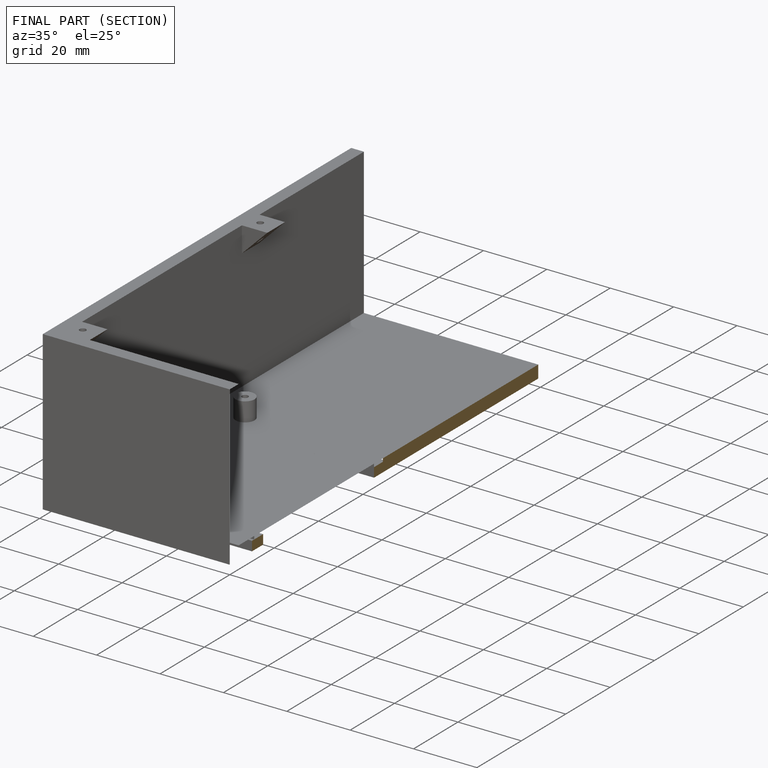
[diagram: finished part — half-section view (interior)]
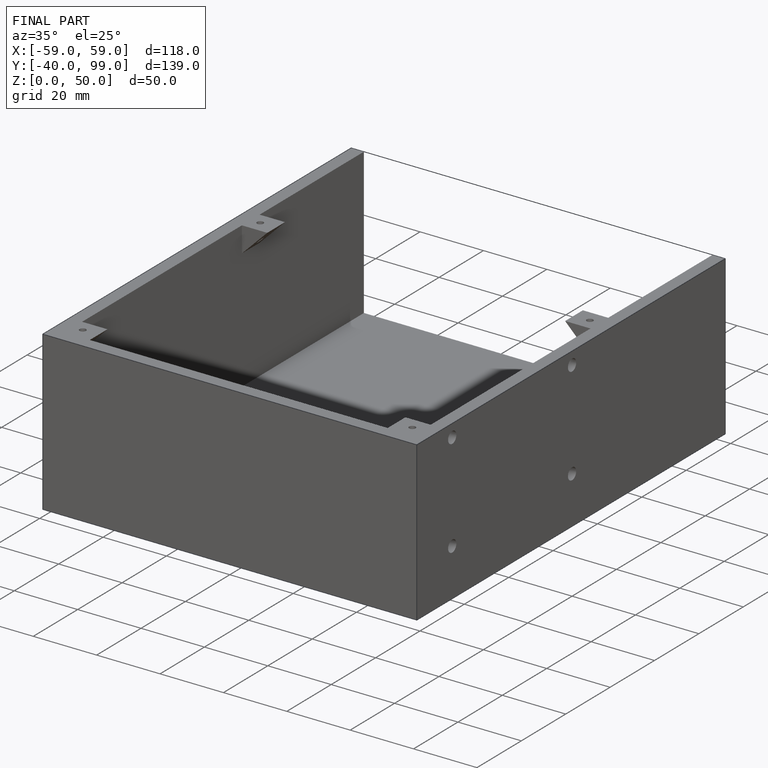
[diagram: finished part — iso view with bounding-box wireframe]
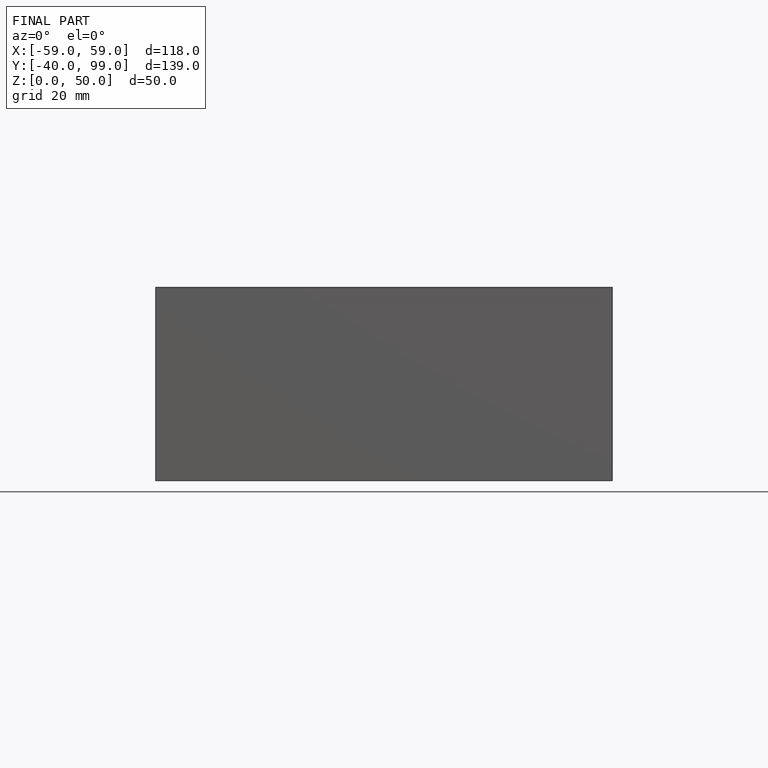
[diagram: finished part — front view with bounding-box wireframe]
